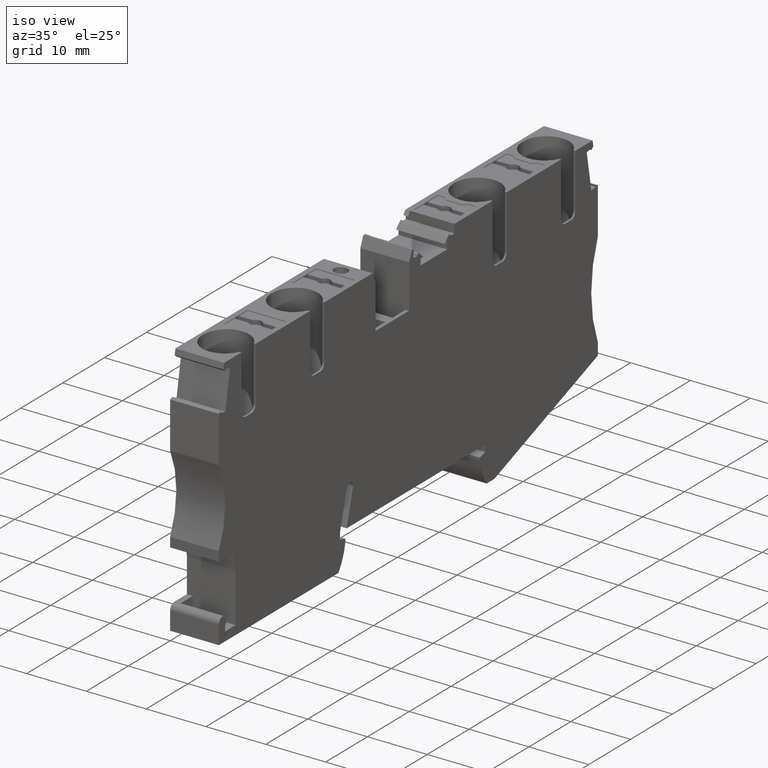
[diagram: clean part render]
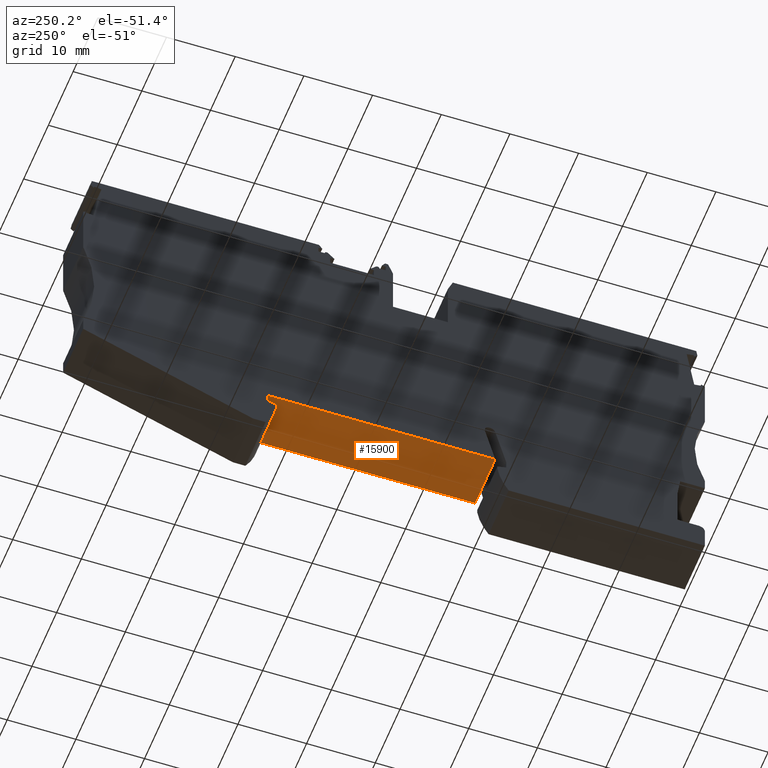
[diagram: tour spotlight — one face highlighted and labeled with its STEP entity id]
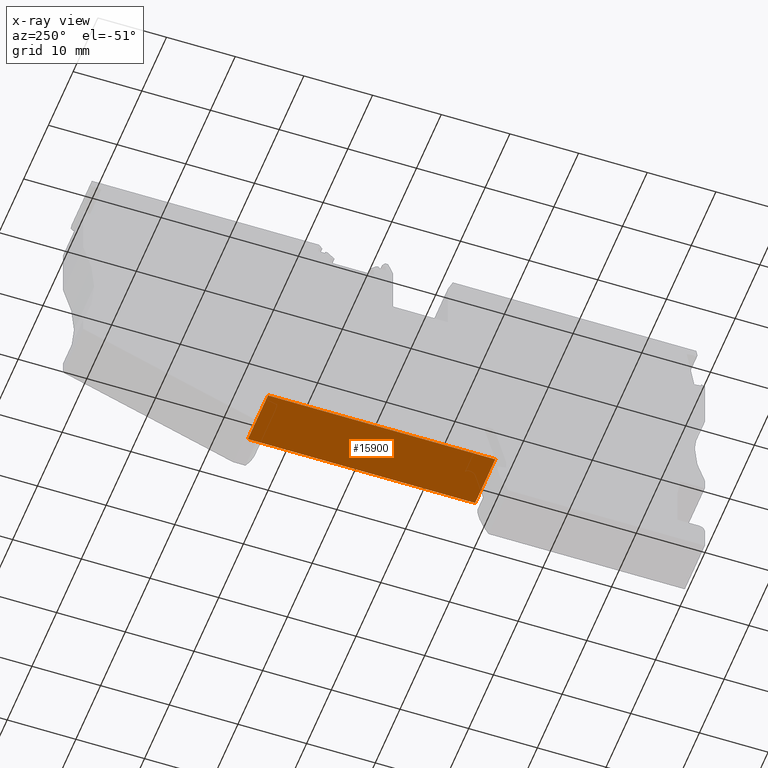
[diagram: x-ray of the same camera — body ghosted, this tour face saturated]
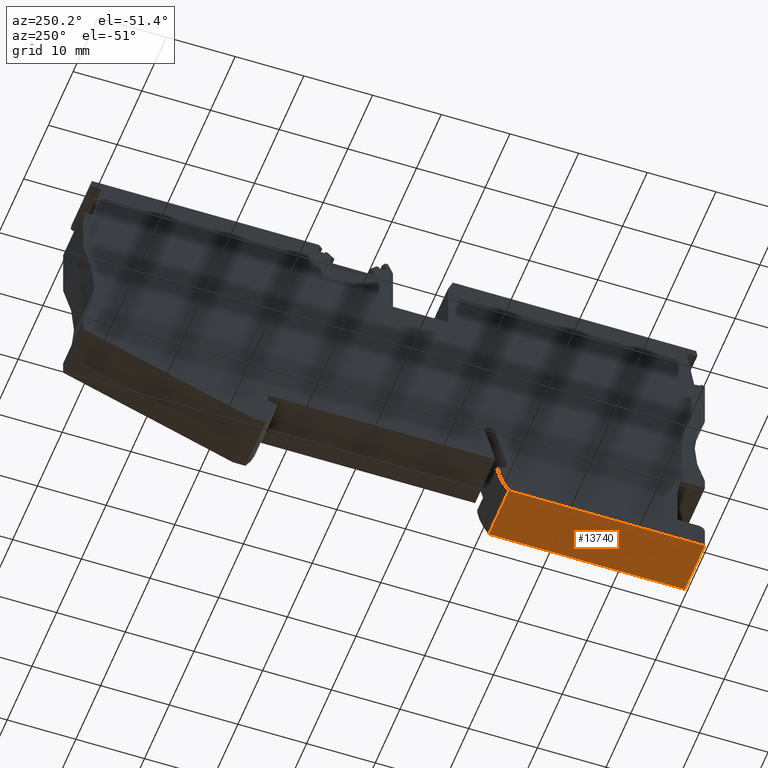
[diagram: tour spotlight — one face highlighted and labeled with its STEP entity id]
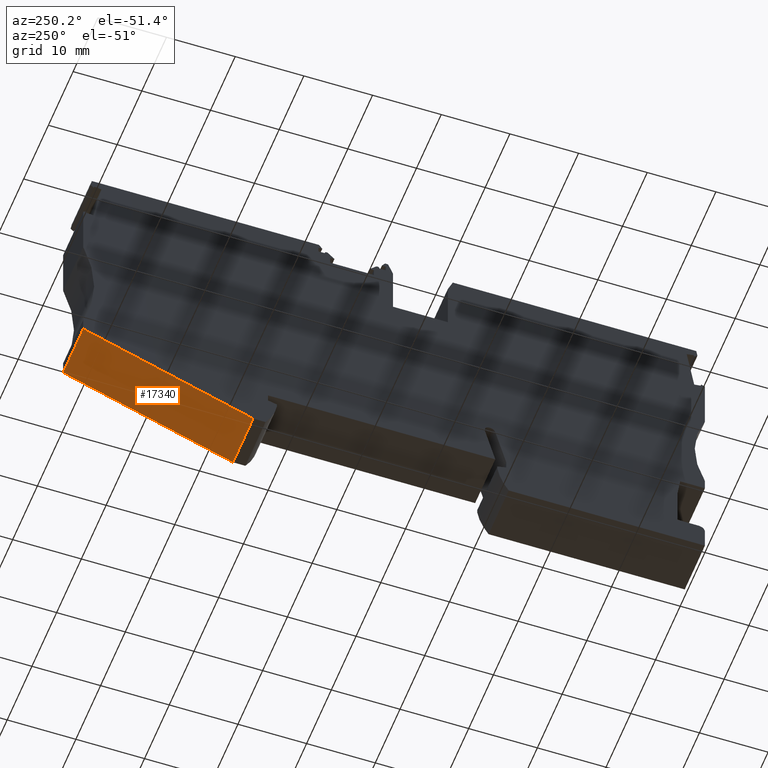
[diagram: tour spotlight — one face highlighted and labeled with its STEP entity id]
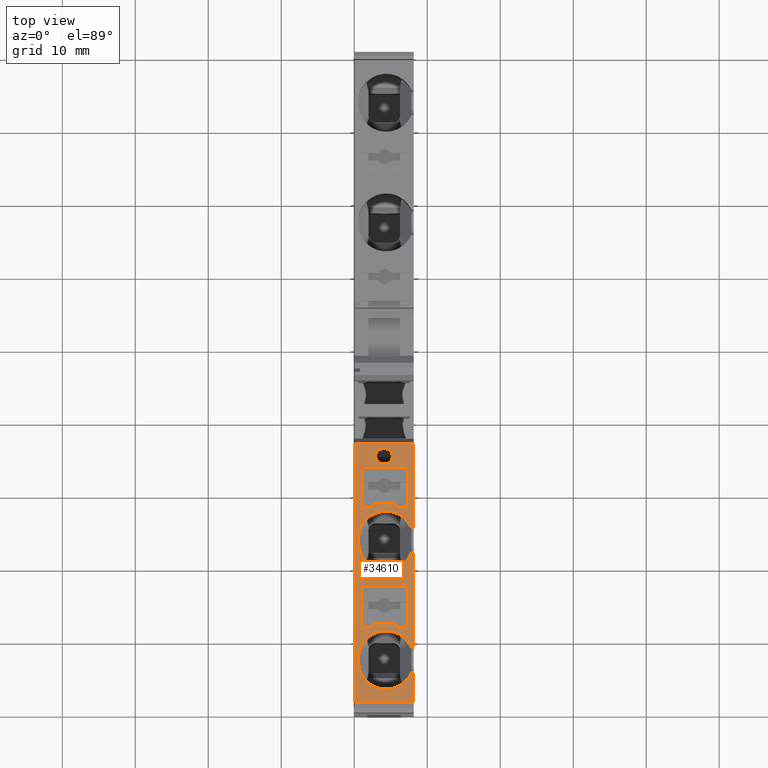
[diagram: tour spotlight — one face highlighted and labeled with its STEP entity id]
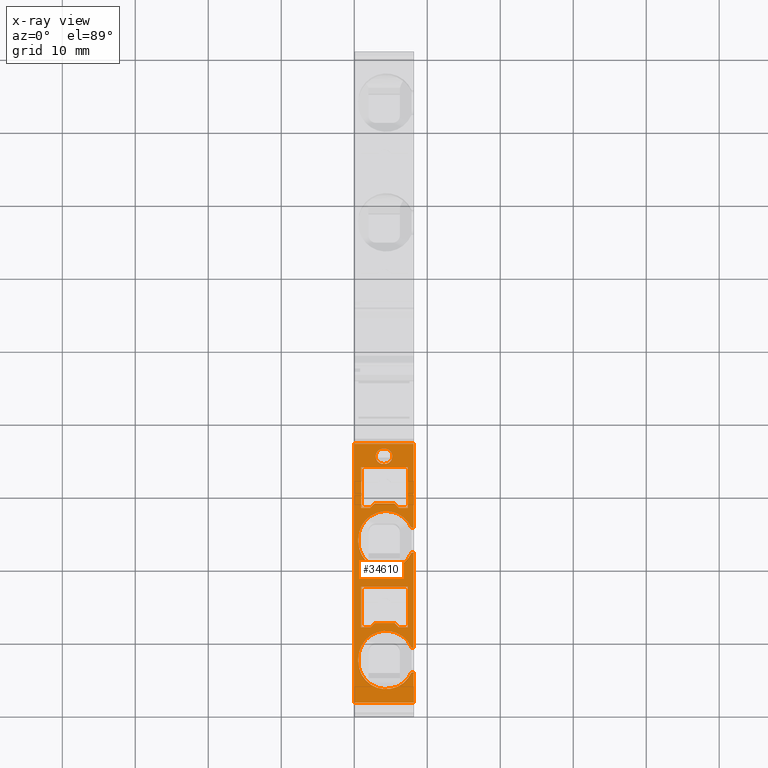
[diagram: x-ray of the same camera — body ghosted, this tour face saturated]
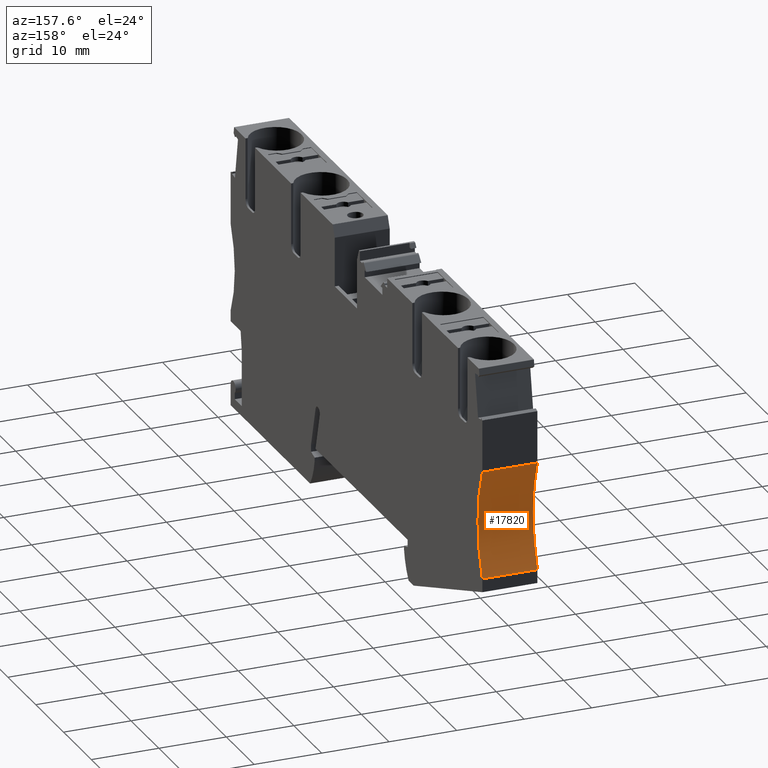
[diagram: tour spotlight — one face highlighted and labeled with its STEP entity id]
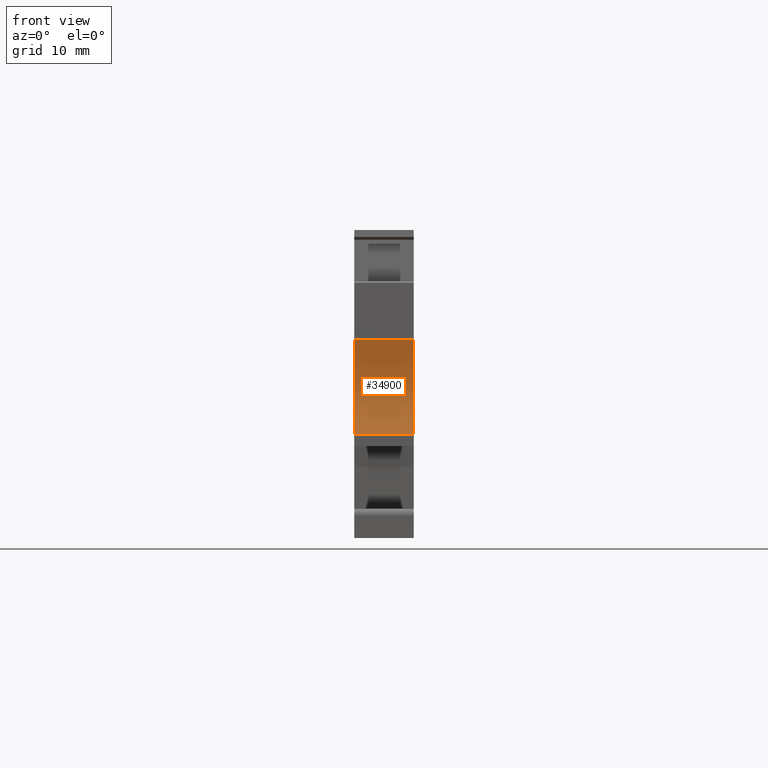
[diagram: tour spotlight — one face highlighted and labeled with its STEP entity id]
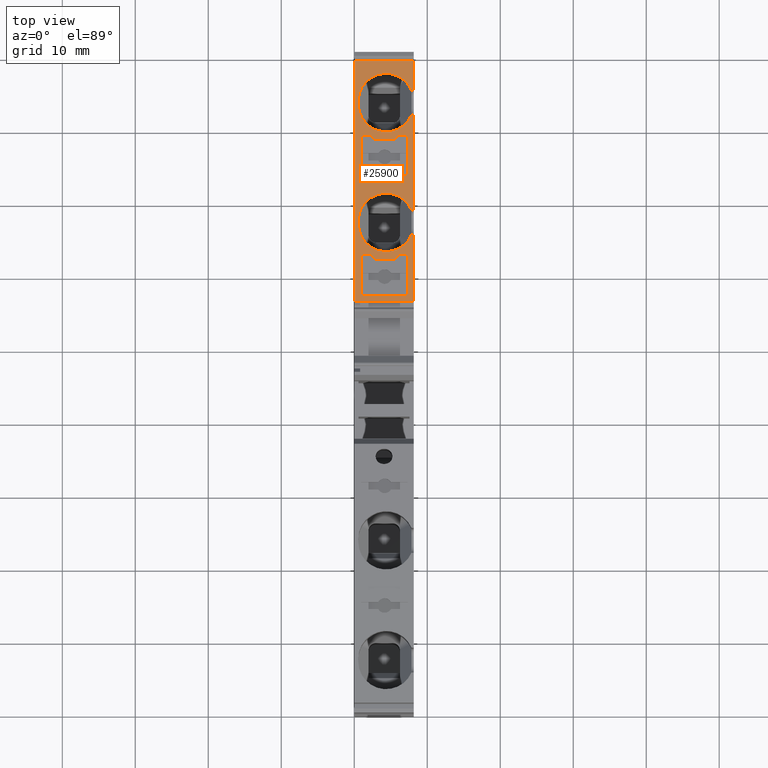
[diagram: tour spotlight — one face highlighted and labeled with its STEP entity id]
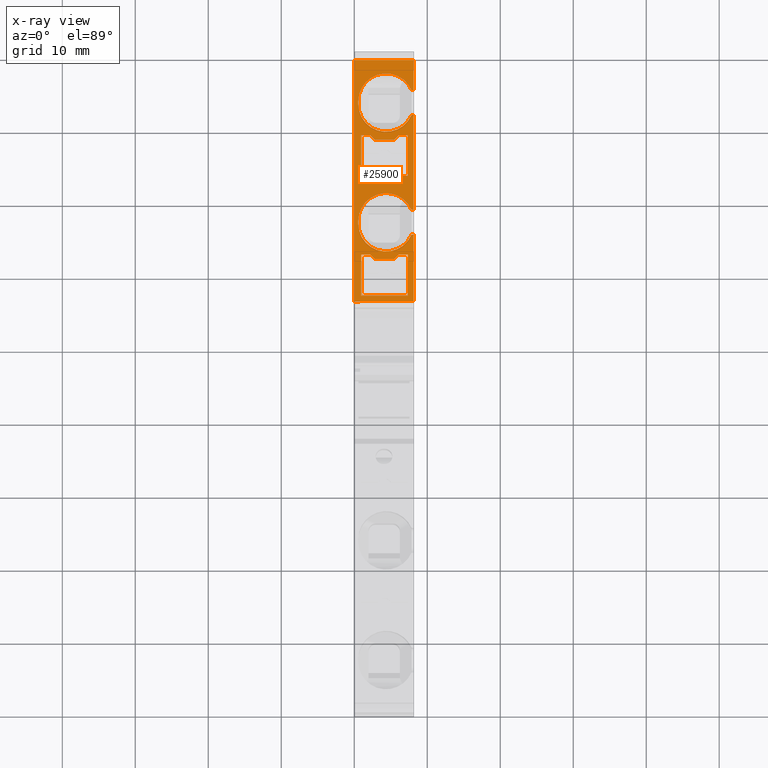
[diagram: x-ray of the same camera — body ghosted, this tour face saturated]
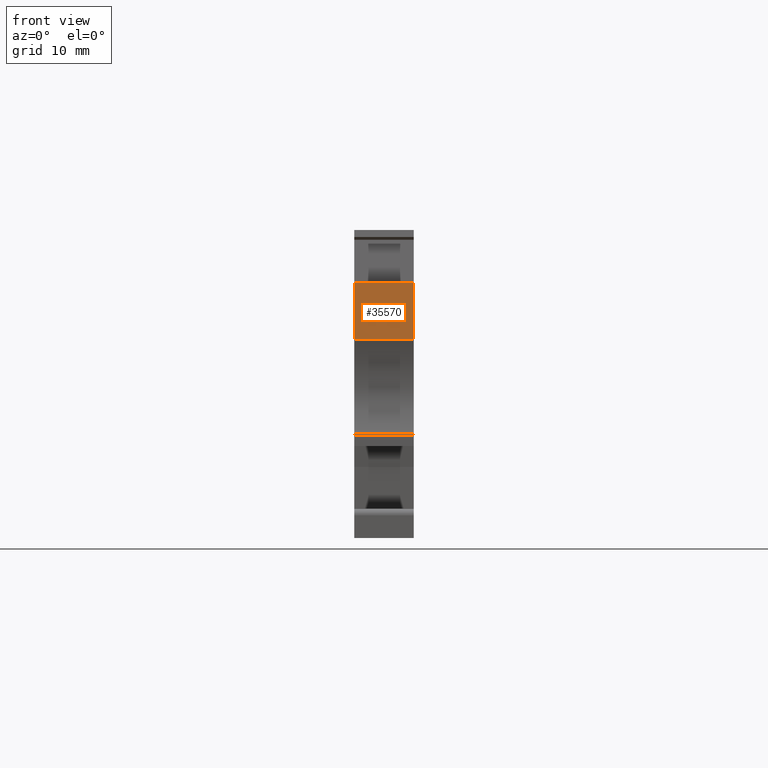
[diagram: tour spotlight — one face highlighted and labeled with its STEP entity id]
A machine part: a face-by-face anatomy tour. The part has 258 B-rep faces; the first image is the clean iso view, then the 8 largest visible faces are spotlighted one at a time (largest first), each with its STEP entity span.

Face 1 — auxiliary view, entity #15900. An x-ray twin of the same camera follows (body ghosted, this face saturated) — the face is partly hidden behind the body. In plain terms, the highlighted planar face has unit normal (-0, 0, 1).
Definition (entity closure, byte-faithful):
#2420=CARTESIAN_POINT('',(19.1321672216941,-38.3999999991542,
53.6699999996562));
#2430=VERTEX_POINT('',#2420);
#2460=CARTESIAN_POINT('',(1.87807013609185E-11,-38.3999999991542,
53.6699999997081));
#2470=DIRECTION('',(-1.,0.,2.71468618527214E-12));
#2480=VECTOR('',#2470,1.);
#2490=LINE('',#2460,#2480);
#2500=CARTESIAN_POINT('',(-13.9678327783064,-38.3999999991542,
53.669999999746));
#2510=VERTEX_POINT('',#2500);
#2520=EDGE_CURVE('',#2430,#2510,#2490,.T.);
#11630=CARTESIAN_POINT('',(-13.9678327783285,-38.3999999991583,
45.5199999998736));
#11640=VERTEX_POINT('',#11630);
#11670=CARTESIAN_POINT('',(5.95238182717381E-15,-38.3999999991583,
45.5199999998397));
#11680=DIRECTION('',(-1.,-1.44620292032358E-25,2.43228784430126E-12));
#11690=VECTOR('',#11680,1.);
#11700=LINE('',#11670,#11690);
#11710=CARTESIAN_POINT('',(19.132167221672,-38.3999999991583,
45.5199999997931));
#11720=VERTEX_POINT('',#11710);
#11730=EDGE_CURVE('',#11720,#11640,#11700,.T.);
#15560=CARTESIAN_POINT('',(-13.9678327784521,-38.3999999991816,
-1.13389967301913E-9));
#15570=DIRECTION('',(-2.71468618527214E-12,-5.12067753800213E-13,-1.));
#15580=VECTOR('',#15570,1.);
#15590=LINE('',#15560,#15580);
#15600=EDGE_CURVE('',#2510,#11640,#15590,.T.);
#15740=CARTESIAN_POINT('',(19.1321672216941,-38.3999999991542,
53.6699999996562));
#15750=DIRECTION('',(-1.39010325716477E-24,1.,-5.12067753800213E-13));
#15760=DIRECTION('',(1.,0.,-2.71468618527214E-12));
#15770=AXIS2_PLACEMENT_3D('',#15740,#15750,#15760);
#15780=PLANE('',#15770);
#15790=ORIENTED_EDGE('',*,*,#2520,.T.);
#15800=CARTESIAN_POINT('',(19.1321672215485,-38.3999999991816,
-1.20936412374023E-9));
#15810=DIRECTION('',(-2.71468618527214E-12,-5.12067753800213E-13,-1.));
#15820=VECTOR('',#15810,1.);
#15830=LINE('',#15800,#15820);
#15840=EDGE_CURVE('',#2430,#11720,#15830,.T.);
#15850=ORIENTED_EDGE('',*,*,#15840,.F.);
#15860=ORIENTED_EDGE('',*,*,#11730,.F.);
#15870=ORIENTED_EDGE('',*,*,#15600,.T.);
#15880=EDGE_LOOP('',(#15870,#15860,#15850,#15790));
#15890=FACE_OUTER_BOUND('',#15880,.T.);
#15900=ADVANCED_FACE('',(#15890),#15780,.F.);

Face 2 — auxiliary view, entity #13740. In plain terms, the highlighted planar face has unit normal (-0, -0, 1).
Definition (entity closure, byte-faithful):
#3170=CARTESIAN_POINT('',(-15.9267764349393,-44.4000000040636,
53.6699999997544));
#3180=VERTEX_POINT('',#3170);
#3210=CARTESIAN_POINT('',(1.88126757840348E-11,-44.400000004063,
53.6699999997112));
#3220=DIRECTION('',(-1.,-3.82333054095721E-14,2.71468618527216E-12));
#3230=VECTOR('',#3220,1.);
#3240=LINE('',#3210,#3230);
#3250=CARTESIAN_POINT('',(-44.4928327779468,-44.4000000040647,
53.669999999832));
#3260=VERTEX_POINT('',#3250);
#3270=EDGE_CURVE('',#3180,#3260,#3240,.T.);
#10880=CARTESIAN_POINT('',(-44.4928327779689,-44.4000000040688,
45.5199999999489));
#10890=VERTEX_POINT('',#10880);
#10920=CARTESIAN_POINT('',(5.95238182948773E-15,-44.4000000040671,
45.5199999998407));
#10930=DIRECTION('',(-1.,-3.82333054097167E-14,2.43228784430126E-12));
#10940=VECTOR('',#10930,1.);
#10950=LINE('',#10920,#10940);
#10960=CARTESIAN_POINT('',(-15.9267764349614,-44.4000000040677,
45.5199999998791));
#10970=VERTEX_POINT('',#10960);
#10980=EDGE_CURVE('',#10970,#10890,#10950,.T.);
#13350=CARTESIAN_POINT('',(-44.4928327780925,-44.4000000040921,
-1.06430594618425E-9));
#13360=DIRECTION('',(-2.71468618527214E-12,-5.12067753800213E-13,-1.));
#13370=VECTOR('',#13360,1.);
#13380=LINE('',#13350,#13370);
#13390=EDGE_CURVE('',#3260,#10890,#13380,.T.);
#13580=CARTESIAN_POINT('',(-15.9267764349393,-44.4000000040636,
53.6699999997544));
#13590=DIRECTION('',(-3.82333054109622E-14,1.,-5.12067753800109E-13));
#13600=DIRECTION('',(1.,3.82333054095721E-14,-2.71468618527216E-12));
#13610=AXIS2_PLACEMENT_3D('',#13580,#13590,#13600);
#13620=PLANE('',#13610);
#13630=ORIENTED_EDGE('',*,*,#3270,.T.);
#13640=CARTESIAN_POINT('',(-15.9267764349393,-44.4000000040636,
53.6699999997544));
#13650=DIRECTION('',(-2.71468618527214E-12,-5.12067753800213E-13,-1.));
#13660=VECTOR('',#13650,1.);
#13670=LINE('',#13640,#13660);
#13680=EDGE_CURVE('',#3180,#10970,#13670,.T.);
#13690=ORIENTED_EDGE('',*,*,#13680,.F.);
#13700=ORIENTED_EDGE('',*,*,#10980,.F.);
#13710=ORIENTED_EDGE('',*,*,#13390,.T.);
#13720=EDGE_LOOP('',(#13710,#13700,#13690,#13630));
#13730=FACE_OUTER_BOUND('',#13720,.T.);
#13740=ADVANCED_FACE('',(#13730),#13620,.F.);

Face 3 — auxiliary view, entity #17340. In plain terms, the highlighted planar face has unit normal (-0, -0.3485, 0.9373).
Definition (entity closure, byte-faithful):
#1930=CARTESIAN_POINT('',(46.0321672309341,-35.1999999922851,
53.6699999995815));
#1940=VERTEX_POINT('',#1930);
#1970=CARTESIAN_POINT('',(1.88553083481896E-11,-52.317744261007,
53.6699999997152));
#1980=DIRECTION('',(-0.937291736634536,-0.348545836923376,
2.72293201282128E-12));
#1990=VECTOR('',#1980,1.);
#2000=LINE('',#1970,#1990);
#2010=CARTESIAN_POINT('',(21.2919951507491,-44.3999999989839,
53.6699999996534));
#2020=VERTEX_POINT('',#2010);
#2030=EDGE_CURVE('',#1940,#2020,#2000,.T.);
#12120=CARTESIAN_POINT('',(21.2919951507269,-44.3999999989881,
45.5199999997889));
#12130=VERTEX_POINT('',#12120);
#12160=CARTESIAN_POINT('',(5.95238183252105E-15,-52.3177442610099,
45.519999999842));
#12170=DIRECTION('',(-0.937291736634536,-0.348545836923376,
2.33876320057636E-12));
#12180=VECTOR('',#12170,1.);
#12190=LINE('',#12160,#12180);
#12200=CARTESIAN_POINT('',(46.0321672309119,-35.1999999922893,
45.5199999997272));
#12210=VERTEX_POINT('',#12200);
#12220=EDGE_CURVE('',#12210,#12130,#12190,.T.);
#17000=CARTESIAN_POINT('',(21.2919951506033,-44.3999999990114,
-1.21428829982236E-9));
#17010=DIRECTION('',(-2.71468618527214E-12,-5.12067753800213E-13,-1.));
#17020=VECTOR('',#17010,1.);
#17030=LINE('',#17000,#17020);
#17040=EDGE_CURVE('',#2020,#12130,#17030,.T.);
#17180=CARTESIAN_POINT('',(46.0321672309341,-35.1999999922851,
53.6699999995815));
#17190=DIRECTION('',(-0.348545836923376,0.937291736634536,
4.66235694196059E-13));
#17200=DIRECTION('',(0.937291736634536,0.348545836923376,
-2.72293201282128E-12));
#17210=AXIS2_PLACEMENT_3D('',#17180,#17190,#17200);
#17220=PLANE('',#17210);
#17230=ORIENTED_EDGE('',*,*,#2030,.T.);
#17240=CARTESIAN_POINT('',(46.0321672307884,-35.1999999923126,
-1.27069323930201E-9));
#17250=DIRECTION('',(-2.71468618527214E-12,-5.12067753800213E-13,-1.));
#17260=VECTOR('',#17250,1.);
#17270=LINE('',#17240,#17260);
#17280=EDGE_CURVE('',#1940,#12210,#17270,.T.);
#17290=ORIENTED_EDGE('',*,*,#17280,.F.);
#17300=ORIENTED_EDGE('',*,*,#12220,.F.);
#17310=ORIENTED_EDGE('',*,*,#17040,.T.);
#17320=EDGE_LOOP('',(#17310,#17300,#17290,#17230));
#17330=FACE_OUTER_BOUND('',#17320,.T.);
#17340=ADVANCED_FACE('',(#17330),#17220,.F.);

Face 4 — top view, entity #34610. An x-ray twin of the same camera follows (body ghosted, this face saturated) — the face is partly hidden behind the body. In plain terms, the highlighted planar face has unit normal (0, -0, -1).
Definition (entity closure, byte-faithful):
#4710=CARTESIAN_POINT('',(-43.2362293342125,-2.19999999291326,
53.6699999998069));
#4720=VERTEX_POINT('',#4710);
#4750=CARTESIAN_POINT('',(1.85870784653816E-11,-2.19999999018175,
53.6699999996896));
#4760=DIRECTION('',(1.,-3.31124017634315E-14,-2.71468618527213E-12));
#4770=VECTOR('',#4760,1.);
#4780=LINE('',#4750,#4770);
#4790=CARTESIAN_POINT('',(-39.1178329684816,-2.19999999018045,
53.6699999997958));
#4800=VERTEX_POINT('',#4790);
#4810=EDGE_CURVE('',#4720,#4800,#4780,.T.);
#5210=CARTESIAN_POINT('',(-35.7178329684816,-2.19999999018057,
53.6699999997865));
#5220=VERTEX_POINT('',#5210);
#5250=CARTESIAN_POINT('',(1.85870784653816E-11,-2.19999999018172,
53.6699999996896));
#5260=DIRECTION('',(1.,-3.26960681289431E-14,-2.71468618527213E-12));
#5270=VECTOR('',#5260,1.);
#5280=LINE('',#5250,#5270);
#5290=CARTESIAN_POINT('',(-22.7178329684778,-2.19999999018098,
53.6699999997512));
#5300=VERTEX_POINT('',#5290);
#5310=EDGE_CURVE('',#5220,#5300,#5280,.T.);
#5710=CARTESIAN_POINT('',(-19.3178329684778,-2.19999999018109,
53.669999999742));
#5720=VERTEX_POINT('',#5710);
#5750=CARTESIAN_POINT('',(1.85870784653817E-11,-2.19999999291469,
53.6699999996896));
#5760=DIRECTION('',(1.,-3.29181126804604E-14,-2.71468618527213E-12));
#5770=VECTOR('',#5760,1.);
#5780=LINE('',#5750,#5770);
#5790=CARTESIAN_POINT('',(-7.78633249990522,-2.19999999291443,
53.6699999997107));
#5800=VERTEX_POINT('',#5790);
#5810=EDGE_CURVE('',#5720,#5800,#5780,.T.);
#9420=CARTESIAN_POINT('',(-7.78633250026155,-2.1999999929186,
45.5199999998525));
#9430=VERTEX_POINT('',#9420);
#9460=CARTESIAN_POINT('',(5.95238181319787E-15,-2.19999999291886,
45.5199999998335));
#9470=DIRECTION('',(1.,-3.29181126803158E-14,-2.43228784430125E-12));
#9480=VECTOR('',#9470,1.);
#9490=LINE('',#9460,#9480);
#9500=CARTESIAN_POINT('',(-43.2362293342346,-2.19999999291744,
45.5199999999387));
#9510=VERTEX_POINT('',#9500);
#9520=EDGE_CURVE('',#9510,#9430,#9490,.T.);
#23280=CARTESIAN_POINT('',(-43.2362293343582,-2.19999999000144,
-1.06717086729168E-9));
#23290=DIRECTION('',(-2.71468618527214E-12,-5.12067753800213E-13,-1.));
#23300=VECTOR('',#23290,1.);
#23310=LINE('',#23280,#23300);
#23320=EDGE_CURVE('',#4720,#9510,#23310,.T.);
#31820=CARTESIAN_POINT('',(-7.78633250038513,-2.19999999294191,
-1.14799283081722E-9));
#31830=DIRECTION('',(-2.71468618527214E-12,-5.12067753800213E-13,-1.));
#31840=VECTOR('',#31830,1.);
#31850=LINE('',#31820,#31840);
#31860=EDGE_CURVE('',#5800,#9430,#31850,.T.);
#32000=CARTESIAN_POINT('',(-19.3178329684894,-2.19999999291405,
53.669999999742));
#32010=DIRECTION('',(-3.29181126790703E-14,-1.,5.12067753800302E-13));
#32020=DIRECTION('',(-1.,3.29181126804604E-14,2.71468618527213E-12));
#32030=AXIS2_PLACEMENT_3D('',#32000,#32010,#32020);
#32040=PLANE('',#32030);
#32050=ORIENTED_EDGE('',*,*,#31860,.T.);
#32060=ORIENTED_EDGE('',*,*,#5810,.T.);
#32070=CARTESIAN_POINT('',(-19.3178329689535,-2.19999999294153,
-1.1217022462598E-9));
#32080=DIRECTION('',(-8.86335069063965E-12,-5.12067753800011E-13,-1.));
#32090=VECTOR('',#32080,1.);
#32100=LINE('',#32070,#32090);
#32110=CARTESIAN_POINT('',(-19.3178329684805,-2.19999999291421,
53.3614180490743));
#32120=VERTEX_POINT('',#32110);
#32130=EDGE_CURVE('',#5720,#32120,#32100,.T.);
#32140=ORIENTED_EDGE('',*,*,#32130,.F.);
#32150=CARTESIAN_POINT('',(-20.8178329685115,-2.19999999291595,
49.8699999990684));
#32160=DIRECTION('',(-1.20206344877901E-10,-1.,3.06483167043375E-11));
#32170=DIRECTION('',(1.,-1.20206344878173E-10,-8.86335069057809E-12));
#32180=AXIS2_PLACEMENT_3D('',#32150,#32160,#32170);
#32190=CIRCLE('',#32180,3.8);
#32200=CARTESIAN_POINT('',(-20.8178329685451,-2.19999999291789,
46.0699999990684));
#32210=VERTEX_POINT('',#32200);
#32220=EDGE_CURVE('',#32210,#32120,#32190,.T.);
#32230=ORIENTED_EDGE('',*,*,#32220,.T.);
#32240=CARTESIAN_POINT('',(1.25989340371474E-12,-2.19999999291858,
46.0699999988839));
#32250=DIRECTION('',(-1.,3.29181126836086E-14,8.86335069426121E-12));
#32260=VECTOR('',#32250,1.);
#32270=LINE('',#32240,#32260);
#32280=CARTESIAN_POINT('',(-21.2178329685451,-2.19999999291788,
46.0699999990719));
#32290=VERTEX_POINT('',#32280);
#32300=EDGE_CURVE('',#32210,#32290,#32270,.T.);
#32310=ORIENTED_EDGE('',*,*,#32300,.F.);
#32320=CARTESIAN_POINT('',(-21.2178329685115,-2.19999999291593,
49.8699999990719));
#32330=DIRECTION('',(-1.20206344877901E-10,-1.,3.06483167043375E-11));
#32340=DIRECTION('',(1.,-1.20206344878173E-10,-8.86335069057809E-12));
#32350=AXIS2_PLACEMENT_3D('',#32320,#32330,#32340);
#32360=CIRCLE('',#32350,3.8);
#32370=CARTESIAN_POINT('',(-22.7178329684805,-2.19999999262862,
53.3614180491045));
#32380=VERTEX_POINT('',#32370);
#32390=EDGE_CURVE('',#32380,#32290,#32360,.T.);
#32400=ORIENTED_EDGE('',*,*,#32390,.T.);
#32410=CARTESIAN_POINT('',(-22.7178329689535,-2.19999999294142,
-1.1139506108383E-9));
#32420=DIRECTION('',(8.86335069063965E-12,5.12067753800011E-13,1.));
#32430=VECTOR('',#32420,1.);
#32440=LINE('',#32410,#32430);
#32450=EDGE_CURVE('',#32380,#5300,#32440,.T.);
#32460=ORIENTED_EDGE('',*,*,#32450,.F.);
#32470=ORIENTED_EDGE('',*,*,#5310,.T.);
#32480=CARTESIAN_POINT('',(-35.7178329689306,-2.19999999294099,
-1.08431200481496E-9));
#32490=DIRECTION('',(-8.36747164505479E-12,-5.12067753800026E-13,-1.));
#32500=VECTOR('',#32490,1.);
#32510=LINE('',#32480,#32500);
#32520=CARTESIAN_POINT('',(-35.7178329684841,-2.19999999291367,
53.3614180491103));
#32530=VERTEX_POINT('',#32520);
#32540=EDGE_CURVE('',#5220,#32530,#32510,.T.);
#32550=ORIENTED_EDGE('',*,*,#32540,.F.);
#32560=CARTESIAN_POINT('',(-37.2178329685133,-2.19999999291541,
49.8699999991036));
#32570=DIRECTION('',(-1.2020673345596E-10,-1.,3.06483167042779E-11));
#32580=DIRECTION('',(1.,-1.20206733456216E-10,-8.36747164499323E-12));
#32590=AXIS2_PLACEMENT_3D('',#32560,#32570,#32580);
#32600=CIRCLE('',#32590,3.8);
#32610=CARTESIAN_POINT('',(-37.2178329685451,-2.19999999291735,
46.0699999991036));
#32620=VERTEX_POINT('',#32610);
#32630=EDGE_CURVE('',#32620,#32530,#32600,.T.);
#32640=ORIENTED_EDGE('',*,*,#32630,.T.);
#32650=CARTESIAN_POINT('',(1.25989340350573E-12,-2.19999999291858,
46.0699999987922));
#32660=DIRECTION('',(-1.,3.29181126833549E-14,8.36747164867635E-12));
#32670=VECTOR('',#32660,1.);
#32680=LINE('',#32650,#32670);
#32690=CARTESIAN_POINT('',(-37.6178329685452,-2.19999999291734,
46.069999999107));
#32700=VERTEX_POINT('',#32690);
#32710=EDGE_CURVE('',#32620,#32700,#32680,.T.);
#32720=ORIENTED_EDGE('',*,*,#32710,.F.);
#32730=CARTESIAN_POINT('',(-37.6178329685133,-2.19999999291539,
49.869999999107));
#32740=DIRECTION('',(-1.2020673345596E-10,-1.,3.06483167042779E-11));
#32750=DIRECTION('',(1.,-1.20206733456216E-10,-8.36747164499323E-12));
#32760=AXIS2_PLACEMENT_3D('',#32730,#32740,#32750);
#32770=CIRCLE('',#32760,3.8);
#32780=CARTESIAN_POINT('',(-39.1178329684842,-2.19999999262808,
53.3614180491387));
#32790=VERTEX_POINT('',#32780);
#32800=EDGE_CURVE('',#32790,#32700,#32770,.T.);
#32810=ORIENTED_EDGE('',*,*,#32800,.T.);
#32820=CARTESIAN_POINT('',(-39.1178329689306,-2.19999999294088,
-1.07656036939345E-9));
#32830=DIRECTION('',(8.36747164505479E-12,5.12067753800026E-13,1.));
#32840=VECTOR('',#32830,1.);
#32850=LINE('',#32820,#32840);
#32860=EDGE_CURVE('',#32790,#4800,#32850,.T.);
#32870=ORIENTED_EDGE('',*,*,#32860,.F.);
#32880=ORIENTED_EDGE('',*,*,#4810,.T.);
#32890=ORIENTED_EDGE('',*,*,#23320,.F.);
#32900=ORIENTED_EDGE('',*,*,#9520,.F.);
#32910=EDGE_LOOP('',(#32900,#32890,#32880,#32870,#32810,#32720,#32640,
#32550,#32470,#32460,#32400,#32310,#32230,#32140,#32060,#32050));
#32920=FACE_OUTER_BOUND('',#32910,.T.);
#32930=CARTESIAN_POINT('',(35.0521670336861,-2.19999999294332,
-1.24566001622673E-9));
#32940=DIRECTION('',(-0.70710678118207,3.85413922998685E-13,
0.707106781191025));
#32950=VECTOR('',#32940,1.);
#32960=LINE('',#32930,#32950);
#32970=CARTESIAN_POINT('',(-15.9678329652449,-2.19999999291552,
51.0199999983314));
#32980=VERTEX_POINT('',#32970);
#32990=CARTESIAN_POINT('',(-16.5678329642108,-2.19999999291519,
51.619999997305));
#33000=VERTEX_POINT('',#32990);
#33010=EDGE_CURVE('',#32980,#33000,#32960,.T.);
#33020=ORIENTED_EDGE('',*,*,#33010,.F.);
#33030=CARTESIAN_POINT('',(-16.5678329580384,-2.19999999294163,
-1.12797195140502E-9));
#33040=DIRECTION('',(1.19574299609069E-10,-5.12067753804252E-13,-1.));
#33050=VECTOR('',#33040,1.);
#33060=LINE('',#33030,#33050);
#33070=CARTESIAN_POINT('',(-16.5678329643603,-2.19999999291455,
52.869999998317));
#33080=VERTEX_POINT('',#33070);
#33090=EDGE_CURVE('',#33080,#33000,#33060,.T.);
#33100=ORIENTED_EDGE('',*,*,#33090,.T.);
#33110=CARTESIAN_POINT('',(1.67631642451789E-11,-2.1999999929151,
52.8699999982077));
#33120=DIRECTION('',(-1.,3.2918112682447E-14,6.59501385783483E-12));
#33130=VECTOR('',#33120,1.);
#33140=LINE('',#33110,#33130);
#33150=CARTESIAN_POINT('',(-10.9678329652507,-2.19999999291474,
52.86999999828));
#33160=VERTEX_POINT('',#33150);
#33170=EDGE_CURVE('',#33160,#33080,#33140,.T.);
#33180=ORIENTED_EDGE('',*,*,#33170,.T.);
#33190=CARTESIAN_POINT('',(-10.967832965556,-2.19999999294181,
-1.14073935090565E-9));
#33200=DIRECTION('',(5.77295231962718E-12,5.12067753800112E-13,1.));
#33210=VECTOR('',#33200,1.);
#33220=LINE('',#33190,#33210);
#33230=CARTESIAN_POINT('',(-10.9678329652877,-2.19999999291801,
46.4699999983271));
#33240=VERTEX_POINT('',#33230);
#33250=EDGE_CURVE('',#33240,#33160,#33220,.T.);
#33260=ORIENTED_EDGE('',*,*,#33250,.T.);
#33270=CARTESIAN_POINT('',(2.17185051069263E-12,-2.19999999291837,
46.4699999982548));
#33280=DIRECTION('',(1.,-3.2918112682447E-14,-6.59501436892222E-12));
#33290=VECTOR('',#33280,1.);
#33300=LINE('',#33270,#33290);
#33310=CARTESIAN_POINT('',(-16.567832963595,-2.19999999291783,
46.4699999983641));
#33320=VERTEX_POINT('',#33310);
#33330=EDGE_CURVE('',#33320,#33240,#33300,.T.);
#33340=ORIENTED_EDGE('',*,*,#33330,.T.);
#33350=CARTESIAN_POINT('',(-16.5678329580384,-2.19999999294163,
-1.12797195140502E-9));
#33360=DIRECTION('',(1.19574299609069E-10,-5.12067753804252E-13,-1.));
#33370=VECTOR('',#33360,1.);
#33380=LINE('',#33350,#33370);
#33390=CARTESIAN_POINT('',(-16.5678329637445,-2.19999999291719,
47.7199999998884));
#33400=VERTEX_POINT('',#33390);
#33410=EDGE_CURVE('',#33400,#33320,#33380,.T.);
#33420=ORIENTED_EDGE('',*,*,#33410,.T.);
#33430=CARTESIAN_POINT('',(4.27945990835019E-11,-2.19999999290925,
64.2878329634658));
#33440=DIRECTION('',(0.707106781191026,3.38756800388813E-13,
0.707106781182069));
#33450=VECTOR('',#33440,1.);
#33460=LINE('',#33430,#33450);
#33470=CARTESIAN_POINT('',(-15.967832965262,-2.1999999929169,
48.3199999983633));
#33480=VERTEX_POINT('',#33470);
#33490=EDGE_CURVE('',#33400,#33480,#33460,.T.);
#33500=ORIENTED_EDGE('',*,*,#33490,.F.);
#33510=CARTESIAN_POINT('',(-15.967832965568,-2.19999999294164,
-1.12933988705047E-9));
#33520=DIRECTION('',(6.33259961907279E-12,5.12067753800094E-13,1.));
#33530=VECTOR('',#33520,1.);
#33540=LINE('',#33510,#33530);
#33550=EDGE_CURVE('',#33480,#32980,#33540,.T.);
#33560=ORIENTED_EDGE('',*,*,#33550,.F.);
#33570=EDGE_LOOP('',(#33560,#33500,#33420,#33340,#33260,#33180,#33100,
#33020));
#33580=FACE_BOUND('',#33570,.T.);
#33590=CARTESIAN_POINT('',(-9.5178327757178,-2.19999999291641,
49.6949999986486));
#33600=DIRECTION('',(2.4356563987915E-10,1.,-5.04477982812982E-13));
#33610=DIRECTION('',(1.,-2.43565639879093E-10,1.12026229502464E-10));
#33620=AXIS2_PLACEMENT_3D('',#33590,#33600,#33610);
#33630=CIRCLE('',#33620,1.05);
#33640=CARTESIAN_POINT('',(-10.5678327757178,-2.19999999291637,
49.694999998531));
#33650=VERTEX_POINT('',#33640);
#33660=CARTESIAN_POINT('',(-8.4678327757178,-2.19999999291644,
49.6949999987663));
#33670=VERTEX_POINT('',#33660);
#33680=EDGE_CURVE('',#33650,#33670,#33630,.T.);
#33690=ORIENTED_EDGE('',*,*,#33680,.F.);
#33700=CARTESIAN_POINT('',(-8.46783277015066,-2.19999999294189,
-1.14643908327873E-9));
#33710=DIRECTION('',(-1.12026229502339E-10,5.12067753803993E-13,1.));
#33720=VECTOR('',#33710,1.);
#33730=LINE('',#33700,#33720);
#33740=CARTESIAN_POINT('',(-8.4678327756954,-2.19999999317226,
49.4949999987663));
#33750=VERTEX_POINT('',#33740);
#33760=EDGE_CURVE('',#33750,#33670,#33730,.T.);
#33770=ORIENTED_EDGE('',*,*,#33760,.T.);
#33780=CARTESIAN_POINT('',(-9.5178327756954,-2.19999999291651,
49.4949999986486));
#33790=DIRECTION('',(2.4356563987915E-10,1.,-5.04477982812982E-13));
#33800=DIRECTION('',(1.,-2.43565639879093E-10,1.12026229502464E-10));
#33810=AXIS2_PLACEMENT_3D('',#33780,#33790,#33800);
#33820=CIRCLE('',#33810,1.05);
#33830=CARTESIAN_POINT('',(-10.5678327756954,-2.19999999266077,
49.494999998531));
#33840=VERTEX_POINT('',#33830);
#33850=EDGE_CURVE('',#33750,#33840,#33820,.T.);
#33860=ORIENTED_EDGE('',*,*,#33850,.F.);
#33870=CARTESIAN_POINT('',(-10.5678327701507,-2.19999999294182,
-1.14165130845956E-9));
#33880=DIRECTION('',(1.12026229502339E-10,-5.12067753803993E-13,-1.));
#33890=VECTOR('',#33880,1.);
#33900=LINE('',#33870,#33890);
#33910=EDGE_CURVE('',#33650,#33840,#33900,.T.);
#33920=ORIENTED_EDGE('',*,*,#33910,.T.);
#33930=EDGE_LOOP('',(#33920,#33860,#33770,#33690));
#33940=FACE_BOUND('',#33930,.T.);
#33950=CARTESIAN_POINT('',(2.17185051056842E-12,-2.19999999291837,
46.4699999982003));
#33960=DIRECTION('',(1.,-3.29181126821933E-14,-6.09913532333736E-12));
#33970=VECTOR('',#33960,1.);
#33980=LINE('',#33950,#33970);
#33990=CARTESIAN_POINT('',(-32.9678329635952,-2.19999999291729,
46.4699999984014));
#34000=VERTEX_POINT('',#33990);
#34010=CARTESIAN_POINT('',(-27.3678329652879,-2.19999999291747,
46.4699999983672));
#34020=VERTEX_POINT('',#34010);
#34030=EDGE_CURVE('',#34000,#34020,#33980,.T.);
#34040=ORIENTED_EDGE('',*,*,#34030,.T.);
#34050=CARTESIAN_POINT('',(-32.9678329580156,-2.19999999294108,
-1.09058170996017E-9));
#34060=DIRECTION('',(1.20070178654654E-10,-5.12067753804252E-13,-1.));
#34070=VECTOR('',#34060,1.);
#34080=LINE('',#34050,#34070);
#34090=CARTESIAN_POINT('',(-32.9678329637453,-2.19999999291665,
47.7199999999257));
#34100=VERTEX_POINT('',#34090);
#34110=EDGE_CURVE('',#34100,#34000,#34080,.T.);
#34120=ORIENTED_EDGE('',*,*,#34110,.T.);
#34130=CARTESIAN_POINT('',(8.01848405281714E-11,-2.19999999290085,
80.6878329633663));
#34140=DIRECTION('',(0.707106781190675,3.38756800388813E-13,
0.70710678118242));
#34150=VECTOR('',#34140,1.);
#34160=LINE('',#34130,#34150);
#34170=CARTESIAN_POINT('',(-32.3678329652631,-2.19999999291636,
48.3199999984009));
#34180=VERTEX_POINT('',#34170);
#34190=EDGE_CURVE('',#34100,#34180,#34160,.T.);
#34200=ORIENTED_EDGE('',*,*,#34190,.F.);
#34210=CARTESIAN_POINT('',(-32.3678329655451,-2.1999999929411,
-1.09194964560563E-9));
#34220=DIRECTION('',(5.83672057348792E-12,5.1206775380011E-13,1.));
#34230=VECTOR('',#34220,1.);
#34240=LINE('',#34210,#34230);
#34250=CARTESIAN_POINT('',(-32.3678329652473,-2.19999999291497,
51.0199999983691));
#34260=VERTEX_POINT('',#34250);
#34270=EDGE_CURVE('',#34180,#34260,#34240,.T.);
#34280=ORIENTED_EDGE('',*,*,#34270,.F.);
#34290=CARTESIAN_POINT('',(18.6521670337345,-2.19999999294278,
-1.20826977478195E-9));
#34300=DIRECTION('',(-0.707106781182421,3.85413922998685E-13,
0.707106781190674));
#34310=VECTOR('',#34300,1.);
#34320=LINE('',#34290,#34310);
#34330=CARTESIAN_POINT('',(-32.9678329642136,-2.19999999291465,
51.6199999973423));
#34340=VERTEX_POINT('',#34330);
#34350=EDGE_CURVE('',#34260,#34340,#34320,.T.);
#34360=ORIENTED_EDGE('',*,*,#34350,.F.);
#34370=CARTESIAN_POINT('',(-32.9678329580156,-2.19999999294108,
-1.09058170996017E-9));
#34380=DIRECTION('',(1.20070178654654E-10,-5.12067753804252E-13,-1.));
#34390=VECTOR('',#34380,1.);
#34400=LINE('',#34370,#34390);
#34410=CARTESIAN_POINT('',(-32.9678329643637,-2.19999999291401,
52.8699999983543));
#34420=VERTEX_POINT('',#34410);
#34430=EDGE_CURVE('',#34420,#34340,#34400,.T.);
#34440=ORIENTED_EDGE('',*,*,#34430,.T.);
#34450=CARTESIAN_POINT('',(1.67631642450547E-11,-2.1999999929151,
52.8699999981532));
#34460=DIRECTION('',(-1.,3.29181126821933E-14,6.09913481224997E-12));
#34470=VECTOR('',#34460,1.);
#34480=LINE('',#34450,#34470);
#34490=CARTESIAN_POINT('',(-27.3678329652541,-2.1999999929142,
52.8699999983201));
#34500=VERTEX_POINT('',#34490);
#34510=EDGE_CURVE('',#34500,#34420,#34480,.T.);
#34520=ORIENTED_EDGE('',*,*,#34510,.T.);
#34530=CARTESIAN_POINT('',(-27.3678329655331,-2.19999999294127,
-1.1033491094608E-9));
#34540=DIRECTION('',(5.27707327404231E-12,5.12067753800128E-13,1.));
#34550=VECTOR('',#34540,1.);
#34560=LINE('',#34530,#34550);
#34570=EDGE_CURVE('',#34020,#34500,#34560,.T.);
#34580=ORIENTED_EDGE('',*,*,#34570,.T.);
#34590=EDGE_LOOP('',(#34580,#34520,#34440,#34360,#34280,#34200,#34120,
#34040));
#34600=FACE_BOUND('',#34590,.T.);
#34610=ADVANCED_FACE('',(#32920,#33580,#33940,#34600),#32040,.F.);

Face 5 — auxiliary view, entity #17820. In plain terms, the highlighted cylindrical surface (partial cylindrical patch) has radius 21 mm, axis along (1, 0, 0).
Definition (entity closure, byte-faithful):
#1760=CARTESIAN_POINT('',(46.0321672306617,-17.1999999987298,
53.6699999995723));
#1770=VERTEX_POINT('',#1760);
#1800=CARTESIAN_POINT('',(65.4486550695463,-25.1999999988827,
53.6699999995237));
#1810=DIRECTION('',(2.71468618527214E-12,5.12067753800213E-13,1.));
#1820=DIRECTION('',(-5.5372373364854E-15,1.,-5.12067753800198E-13));
#1830=AXIS2_PLACEMENT_3D('',#1800,#1810,#1820);
#1840=CIRCLE('',#1830,21.);
#1850=CARTESIAN_POINT('',(46.0321672309034,-33.1999999996222,
53.6699999995805));
#1860=VERTEX_POINT('',#1850);
#1870=EDGE_CURVE('',#1770,#1860,#1840,.T.);
#12280=CARTESIAN_POINT('',(46.0321672308813,-33.1999999996263,
45.519999999735));
#12290=VERTEX_POINT('',#12280);
#12320=CARTESIAN_POINT('',(65.4486550695242,-25.1999999988869,
45.5199999996782));
#12330=DIRECTION('',(2.71468618527214E-12,5.12067753800213E-13,1.));
#12340=DIRECTION('',(-5.5372373364854E-15,1.,-5.12067753800198E-13));
#12350=AXIS2_PLACEMENT_3D('',#12320,#12330,#12340);
#12360=CIRCLE('',#12350,21.);
#12370=CARTESIAN_POINT('',(46.0321672306396,-17.199999998734,
45.5199999997268));
#12380=VERTEX_POINT('',#12370);
#12390=EDGE_CURVE('',#12380,#12290,#12360,.T.);
#17480=CARTESIAN_POINT('',(46.0321672309034,-33.1999999996221,
53.6699999995805));
#17490=DIRECTION('',(-2.71468618527214E-12,-5.12067753800213E-13,-1.));
#17500=VECTOR('',#17490,1.);
#17510=LINE('',#17480,#17500);
#17520=EDGE_CURVE('',#1860,#12290,#17510,.T.);
#17660=CARTESIAN_POINT('',(65.4486550695463,-25.1999999988827,
53.6699999995237));
#17670=DIRECTION('',(2.71468618527214E-12,5.12067753800213E-13,1.));
#17680=DIRECTION('',(-5.5372373364854E-15,1.,-5.12067753800198E-13));
#17690=AXIS2_PLACEMENT_3D('',#17660,#17670,#17680);
#17700=CYLINDRICAL_SURFACE('',#17690,21.);
#17710=ORIENTED_EDGE('',*,*,#1870,.T.);
#17720=CARTESIAN_POINT('',(46.0321672306617,-17.1999999987299,
53.6699999995723));
#17730=DIRECTION('',(-2.71468618527214E-12,-5.12067753800213E-13,-1.));
#17740=VECTOR('',#17730,1.);
#17750=LINE('',#17720,#17740);
#17760=EDGE_CURVE('',#1770,#12380,#17750,.T.);
#17770=ORIENTED_EDGE('',*,*,#17760,.F.);
#17780=ORIENTED_EDGE('',*,*,#12390,.F.);
#17790=ORIENTED_EDGE('',*,*,#17520,.T.);
#17800=EDGE_LOOP('',(#17790,#17780,#17770,#17710));
#17810=FACE_OUTER_BOUND('',#17800,.T.);
#17820=ADVANCED_FACE('',(#17810),#17700,.F.);

Face 6 — front view, entity #34900. In plain terms, the highlighted cylindrical surface (partial cylindrical patch) has radius 15 mm, axis along (1, 0, 0).
Definition (entity closure, byte-faithful):
#3900=CARTESIAN_POINT('',(-44.4928327782965,-30.1999995973658,
53.6699999998247));
#3910=VERTEX_POINT('',#3900);
#3940=CARTESIAN_POINT('',(-58.0113388059585,-23.6999999988992,
53.6699999998581));
#3950=DIRECTION('',(2.71468618527214E-12,5.12067753800213E-13,1.));
#3960=DIRECTION('',(1.,8.02136135278716E-14,-2.71468618527219E-12));
#3970=AXIS2_PLACEMENT_3D('',#3940,#3950,#3960);
#3980=CIRCLE('',#3970,15.);
#3990=CARTESIAN_POINT('',(-44.4928329707687,-17.2000000001346,
53.669999999818));
#4000=VERTEX_POINT('',#3990);
#4010=EDGE_CURVE('',#3910,#4000,#3980,.T.);
#10220=CARTESIAN_POINT('',(-44.4928329707298,-17.2000000002658,
45.5199999999382));
#10230=VERTEX_POINT('',#10220);
#10260=CARTESIAN_POINT('',(-58.0113388059806,-23.6999999989033,
45.5199999999783));
#10270=DIRECTION('',(2.71468618527214E-12,5.12067753800213E-13,1.));
#10280=DIRECTION('',(1.,8.02136135278716E-14,-2.71468618527219E-12));
#10290=AXIS2_PLACEMENT_3D('',#10260,#10270,#10280);
#10300=CIRCLE('',#10290,15.);
#10310=CARTESIAN_POINT('',(-44.4928327783117,-30.1999995973555,
45.5199999999449));
#10320=VERTEX_POINT('',#10310);
#10330=EDGE_CURVE('',#10320,#10230,#10300,.T.);
#34690=CARTESIAN_POINT('',(-58.0113388059585,-23.6999999988992,
53.6699999998581));
#34700=DIRECTION('',(2.71468618527214E-12,5.12067753800213E-13,1.));
#34710=DIRECTION('',(1.,8.02136135278716E-14,-2.71468618527219E-12));
#34720=AXIS2_PLACEMENT_3D('',#34690,#34700,#34710);
#34730=CYLINDRICAL_SURFACE('',#34720,15.);
#34740=ORIENTED_EDGE('',*,*,#4010,.T.);
#34750=CARTESIAN_POINT('',(-44.4928327782895,-30.1999995973513,
53.6699999998247));
#34760=DIRECTION('',(-2.71468618527214E-12,-5.12067753800213E-13,-1.));
#34770=VECTOR('',#34760,1.);
#34780=LINE('',#34750,#34770);
#34790=EDGE_CURVE('',#3910,#10320,#34780,.T.);
#34800=ORIENTED_EDGE('',*,*,#34790,.F.);
#34810=ORIENTED_EDGE('',*,*,#10330,.F.);
#34820=CARTESIAN_POINT('',(-44.4928329707076,-17.2000000002616,
53.669999999818));
#34830=DIRECTION('',(-2.71468618527214E-12,-5.12067753800213E-13,-1.));
#34840=VECTOR('',#34830,1.);
#34850=LINE('',#34820,#34840);
#34860=EDGE_CURVE('',#4000,#10230,#34850,.T.);
#34870=ORIENTED_EDGE('',*,*,#34860,.T.);
#34880=EDGE_LOOP('',(#34870,#34810,#34800,#34740));
#34890=FACE_OUTER_BOUND('',#34880,.T.);
#34900=ADVANCED_FACE('',(#34890),#34730,.F.);

Face 7 — top view, entity #25900. An x-ray twin of the same camera follows (body ghosted, this face saturated) — the face is partly hidden behind the body. In plain terms, the highlighted planar face has unit normal (0, 0, -1).
Definition (entity closure, byte-faithful):
#100=CARTESIAN_POINT('',(20.8571672251235,-2.19999999152153,
53.669999999633));
#110=VERTEX_POINT('',#100);
#460=CARTESIAN_POINT('',(24.2571672251236,-2.19999999068339,
53.6699999996237));
#470=VERTEX_POINT('',#460);
#500=CARTESIAN_POINT('',(1.85870784653817E-11,-2.19999999666308,
53.6699999996896));
#510=DIRECTION('',(-1.,-2.4651194974206E-10,2.71468618539839E-12));
#520=VECTOR('',#510,1.);
#530=LINE('',#500,#520);
#540=CARTESIAN_POINT('',(37.2571672283083,-2.19999998747874,
53.6699999995884));
#550=VERTEX_POINT('',#540);
#560=EDGE_CURVE('',#550,#470,#530,.T.);
#960=CARTESIAN_POINT('',(40.6571672283083,-2.1999999866406,
53.6699999995792));
#970=VERTEX_POINT('',#960);
#1000=CARTESIAN_POINT('',(1.85870784653817E-11,-2.19999999666308,
53.6699999996896));
#1010=DIRECTION('',(-1.,-2.4651194974206E-10,2.71468618539839E-12));
#1020=VECTOR('',#1010,1.);
#1030=LINE('',#1000,#1020);
#1040=CARTESIAN_POINT('',(44.7755635933701,-2.19999998562535,
53.669999999568));
#1050=VERTEX_POINT('',#1040);
#1060=EDGE_CURVE('',#1050,#970,#1030,.T.);
#7330=CARTESIAN_POINT('',(11.7821672212847,-2.19999999375862,
53.6699999996576));
#7340=VERTEX_POINT('',#7330);
#7370=CARTESIAN_POINT('',(1.85870784653817E-11,-2.19999999666307,
53.6699999996896));
#7380=DIRECTION('',(-1.,-2.46512088519778E-10,2.71468618539839E-12));
#7390=VECTOR('',#7380,1.);
#7400=LINE('',#7370,#7390);
#7410=EDGE_CURVE('',#110,#7340,#7400,.T.);
#7640=CARTESIAN_POINT('',(11.6807354925659,-2.19999999378753,
45.5199999998051));
#7650=VERTEX_POINT('',#7640);
#13090=CARTESIAN_POINT('',(44.775563593348,-2.19999998562953,
45.5199999997246));
#13100=VERTEX_POINT('',#13090);
#13130=CARTESIAN_POINT('',(5.95238181319652E-15,-2.19999999666725,
45.5199999998335));
#13140=DIRECTION('',(1.,2.46512088519778E-10,-2.43228784434298E-12));
#13150=VECTOR('',#13140,1.);
#13160=LINE('',#13130,#13150);
#13170=EDGE_CURVE('',#7650,#13100,#13160,.T.);
#19880=CARTESIAN_POINT('',(44.7755635932244,-2.19999998565284,
-1.26782831775269E-9));
#19890=DIRECTION('',(-2.71468618527214E-12,-5.12067753800213E-13,-1.));
#19900=VECTOR('',#19890,1.);
#19910=LINE('',#19880,#19900);
#19920=EDGE_CURVE('',#1050,#13100,#19910,.T.);
#23440=CARTESIAN_POINT('',(11.7821672212847,-2.19999999375862,
53.6699999996576));
#23450=DIRECTION('',(2.46512088519779E-10,-1.,5.1206775313101E-13));
#23460=DIRECTION('',(-1.,-2.46512088519778E-10,2.71468618539838E-12));
#23470=AXIS2_PLACEMENT_3D('',#23440,#23450,#23460);
#23480=PLANE('',#23470);
#23490=CARTESIAN_POINT('',(11.782167221139,-2.19999999378611,
-1.19260691187223E-9));
#23500=DIRECTION('',(-2.71468618527214E-12,-5.12067753800213E-13,-1.));
#23510=VECTOR('',#23500,1.);
#23520=LINE('',#23490,#23510);
#23530=CARTESIAN_POINT('',(11.7821672212833,-2.19999999376239,
46.3199999988336));
#23540=VERTEX_POINT('',#23530);
#23550=EDGE_CURVE('',#7340,#23540,#23520,.T.);
#23560=ORIENTED_EDGE('',*,*,#23550,.F.);
#23570=CARTESIAN_POINT('',(1.82809023955982E-12,-2.19999999666684,
46.3199999988518));
#23580=DIRECTION('',(-1.,-2.46512088519779E-10,1.54721043456223E-12));
#23590=VECTOR('',#23580,1.);
#23600=LINE('',#23570,#23590);
#23610=CARTESIAN_POINT('',(11.6807354925671,-2.1999999937874,
46.3199999988338));
#23620=VERTEX_POINT('',#23610);
#23630=EDGE_CURVE('',#23540,#23620,#23600,.T.);
#23640=ORIENTED_EDGE('',*,*,#23630,.F.);
#23650=CARTESIAN_POINT('',(11.6807354924955,-2.19999999379534,
-1.19237565840734E-9));
#23660=DIRECTION('',(-1.54721043451998E-12,-1.71386140295782E-13,-1.));
#23670=VECTOR('',#23660,1.);
#23680=LINE('',#23650,#23670);
#23690=EDGE_CURVE('',#23620,#7650,#23680,.T.);
#23700=ORIENTED_EDGE('',*,*,#23690,.F.);
#23710=ORIENTED_EDGE('',*,*,#13170,.F.);
#23720=ORIENTED_EDGE('',*,*,#19920,.T.);
#23730=ORIENTED_EDGE('',*,*,#1060,.F.);
#23740=CARTESIAN_POINT('',(40.6571672174478,-2.19999998666807,
-1.25843881562732E-9));
#23750=DIRECTION('',(2.02357539699735E-10,5.12067803014596E-13,1.));
#23760=VECTOR('',#23750,1.);
#23770=LINE('',#23740,#23760);
#23780=CARTESIAN_POINT('',(40.6571672282458,-2.19999998635527,
53.3614180503666));
#23790=VERTEX_POINT('',#23780);
#23800=EDGE_CURVE('',#23790,#970,#23770,.T.);
#23810=ORIENTED_EDGE('',*,*,#23800,.T.);
#23820=CARTESIAN_POINT('',(39.1571672275393,-2.1999999870123,
49.870000000651));
#23830=DIRECTION('',(-3.66685598551866E-10,1.,-3.0648316678285E-11));
#23840=DIRECTION('',(-1.,-3.66685598545664E-10,2.02357539699923E-10));
#23850=AXIS2_PLACEMENT_3D('',#23820,#23830,#23840);
#23860=CIRCLE('',#23850,3.8);
#23870=CARTESIAN_POINT('',(39.1571672267704,-2.19999998701425,
46.070000000651));
#23880=VERTEX_POINT('',#23870);
#23890=EDGE_CURVE('',#23790,#23880,#23860,.T.);
#23900=ORIENTED_EDGE('',*,*,#23890,.F.);
#23910=CARTESIAN_POINT('',(1.25989342580883E-12,-2.19999999666696,
46.0700000085747));
#23920=DIRECTION('',(1.,2.46512088519676E-10,-2.0235753969624E-10));
#23930=VECTOR('',#23920,1.);
#23940=LINE('',#23910,#23930);
#23950=CARTESIAN_POINT('',(38.7571672267704,-2.19999998711285,
46.0700000007319));
#23960=VERTEX_POINT('',#23950);
#23970=EDGE_CURVE('',#23960,#23880,#23940,.T.);
#23980=ORIENTED_EDGE('',*,*,#23970,.T.);
#23990=CARTESIAN_POINT('',(38.7571672275393,-2.19999998711091,
49.8700000007319));
#24000=DIRECTION('',(-3.66685598551866E-10,1.,-3.0648316678285E-11));
#24010=DIRECTION('',(-1.,-3.66685598545664E-10,2.02357539699923E-10));
#24020=AXIS2_PLACEMENT_3D('',#23990,#24000,#24010);
#24030=CIRCLE('',#24020,3.8);
#24040=CARTESIAN_POINT('',(37.2571672282458,-2.19999998747889,
53.3614180510547));
#24050=VERTEX_POINT('',#24040);
#24060=EDGE_CURVE('',#23960,#24050,#24030,.T.);
#24070=ORIENTED_EDGE('',*,*,#24060,.F.);
#24080=CARTESIAN_POINT('',(37.2571672174477,-2.19999998750621,
-1.25068718020581E-9));
#24090=DIRECTION('',(-2.02357539699735E-10,-5.12067803014596E-13,-1.));
#24100=VECTOR('',#24090,1.);
#24110=LINE('',#24080,#24100);
#24120=EDGE_CURVE('',#550,#24050,#24110,.T.);
#24130=ORIENTED_EDGE('',*,*,#24120,.T.);
#24140=ORIENTED_EDGE('',*,*,#560,.F.);
#24150=CARTESIAN_POINT('',(24.257167214263,-2.19999999071087,
-1.22104857417516E-9));
#24160=DIRECTION('',(2.02357539699735E-10,5.12067803014596E-13,1.));
#24170=VECTOR('',#24160,1.);
#24180=LINE('',#24150,#24170);
#24190=CARTESIAN_POINT('',(24.2571672250611,-2.19999999039806,
53.3614180493697));
#24200=VERTEX_POINT('',#24190);
#24210=EDGE_CURVE('',#24200,#470,#24180,.T.);
#24220=ORIENTED_EDGE('',*,*,#24210,.T.);
#24230=CARTESIAN_POINT('',(22.7571672243546,-2.1999999910551,
49.869999999654));
#24240=DIRECTION('',(-3.66685598551866E-10,1.,-3.0648316678285E-11));
#24250=DIRECTION('',(-1.,-3.66685598545664E-10,2.02357539699923E-10));
#24260=AXIS2_PLACEMENT_3D('',#24230,#24240,#24250);
#24270=CIRCLE('',#24260,3.8);
#24280=CARTESIAN_POINT('',(22.7571672235856,-2.19999999105704,
46.069999999654));
#24290=VERTEX_POINT('',#24280);
#24300=EDGE_CURVE('',#24200,#24290,#24270,.T.);
#24310=ORIENTED_EDGE('',*,*,#24300,.F.);
#24320=CARTESIAN_POINT('',(1.25989341596975E-12,-2.19999999666696,
46.0700000042591));
#24330=DIRECTION('',(1.,2.46512088519676E-10,-2.0235753969624E-10));
#24340=VECTOR('',#24330,1.);
#24350=LINE('',#24320,#24340);
#24360=CARTESIAN_POINT('',(22.3571672235856,-2.19999999115565,
46.069999999735));
#24370=VERTEX_POINT('',#24360);
#24380=EDGE_CURVE('',#24370,#24290,#24350,.T.);
#24390=ORIENTED_EDGE('',*,*,#24380,.T.);
#24400=CARTESIAN_POINT('',(22.3571672243546,-2.1999999911537,
49.869999999735));
#24410=DIRECTION('',(-3.66685598551866E-10,1.,-3.0648316678285E-11));
#24420=DIRECTION('',(-1.,-3.66685598545664E-10,2.02357539699923E-10));
#24430=AXIS2_PLACEMENT_3D('',#24400,#24410,#24420);
#24440=CIRCLE('',#24430,3.8);
#24450=CARTESIAN_POINT('',(20.8571672250611,-2.19999999152168,
53.3614180500578));
#24460=VERTEX_POINT('',#24450);
#24470=EDGE_CURVE('',#24370,#24460,#24440,.T.);
#24480=ORIENTED_EDGE('',*,*,#24470,.F.);
#24490=CARTESIAN_POINT('',(20.857167214263,-2.19999999154901,
-1.21329693875365E-9));
#24500=DIRECTION('',(-2.02357539699735E-10,-5.12067803014596E-13,-1.));
#24510=VECTOR('',#24500,1.);
#24520=LINE('',#24490,#24510);
#24530=EDGE_CURVE('',#110,#24460,#24520,.T.);
#24540=ORIENTED_EDGE('',*,*,#24530,.T.);
#24550=ORIENTED_EDGE('',*,*,#7410,.F.);
#24560=EDGE_LOOP('',(#24550,#24540,#24480,#24390,#24310,#24220,#24140,
#24130,#24070,#23980,#23900,#23810,#23730,#23720,#23710,#23700,#23640,
#23560));
#24570=FACE_OUTER_BOUND('',#24560,.T.);
#24580=CARTESIAN_POINT('',(18.1071672033479,-2.19999999222692,
-1.20702723360844E-9));
#24590=DIRECTION('',(-3.30795189999444E-10,-5.12067834676007E-13,-1.));
#24600=VECTOR('',#24590,1.);
#24610=LINE('',#24580,#24600);
#24620=CARTESIAN_POINT('',(18.1071672191335,-2.19999999220248,
47.7200000014526));
#24630=VERTEX_POINT('',#24620);
#24640=CARTESIAN_POINT('',(18.10716721872,-2.19999999220312,
46.4699999999283));
#24650=VERTEX_POINT('',#24640);
#24660=EDGE_CURVE('',#24630,#24650,#24610,.T.);
#24670=ORIENTED_EDGE('',*,*,#24660,.F.);
#24680=CARTESIAN_POINT('',(2.17185052295558E-12,-2.19999999666676,
46.4700000036335));
#24690=DIRECTION('',(-1.,-2.46512088519675E-10,2.04625876021579E-10));
#24700=VECTOR('',#24690,1.);
#24710=LINE('',#24680,#24700);
#24720=CARTESIAN_POINT('',(12.5071672204126,-2.19999999358359,
46.4700000010743));
#24730=VERTEX_POINT('',#24720);
#24740=EDGE_CURVE('',#24650,#24730,#24710,.T.);
#24750=ORIENTED_EDGE('',*,*,#24740,.F.);
#24760=CARTESIAN_POINT('',(12.5071672108655,-2.19999999360738,
-1.19425983410781E-9));
#24770=DIRECTION('',(2.05447938070747E-10,5.12067803776417E-13,1.));
#24780=VECTOR('',#24770,1.);
#24790=LINE('',#24760,#24780);
#24800=CARTESIAN_POINT('',(12.5071672217275,-2.19999999358031,
52.8700000010271));
#24810=VERTEX_POINT('',#24800);
#24820=EDGE_CURVE('',#24730,#24810,#24790,.T.);
#24830=ORIENTED_EDGE('',*,*,#24820,.F.);
#24840=CARTESIAN_POINT('',(1.67631642574418E-11,-2.19999999666348,
52.8700000035864));
#24850=DIRECTION('',(1.,2.46512088519675E-10,-2.04625876532666E-10));
#24860=VECTOR('',#24850,1.);
#24870=LINE('',#24840,#24860);
#24880=CARTESIAN_POINT('',(18.1071672208371,-2.19999999219984,
52.8699999998812));
#24890=VERTEX_POINT('',#24880);
#24900=EDGE_CURVE('',#24810,#24890,#24870,.T.);
#24910=ORIENTED_EDGE('',*,*,#24900,.F.);
#24920=CARTESIAN_POINT('',(18.1071672033479,-2.19999999222692,
-1.20702723360844E-9));
#24930=DIRECTION('',(-3.30795189999444E-10,-5.12067834676007E-13,-1.));
#24940=VECTOR('',#24930,1.);
#24950=LINE('',#24920,#24940);
#24960=CARTESIAN_POINT('',(18.1071672204236,-2.19999999220049,
51.6199999988693));
#24970=VERTEX_POINT('',#24960);
#24980=EDGE_CURVE('',#24890,#24970,#24950,.T.);
#24990=ORIENTED_EDGE('',*,*,#24980,.F.);
#25000=CARTESIAN_POINT('',(-2.73691013499262E-11,-2.19999999667339,
33.5128327858382));
#25010=DIRECTION('',(0.707106781331426,1.74672415420574E-10,
0.707106781041669));
#25020=VECTOR('',#25010,1.);
#25030=LINE('',#25000,#25020);
#25040=CARTESIAN_POINT('',(17.5071672213309,-2.1999999923487,
51.0200000000225));
#25050=VERTEX_POINT('',#25040);
#25060=EDGE_CURVE('',#25050,#24970,#25030,.T.);
#25070=ORIENTED_EDGE('',*,*,#25060,.T.);
#25080=CARTESIAN_POINT('',(17.5071672108775,-2.19999999237482,
-1.20565929796298E-9));
#25090=DIRECTION('',(2.04888290771302E-10,5.12067803638459E-13,1.));
#25100=VECTOR('',#25090,1.);
#25110=LINE('',#25080,#25100);
#25120=CARTESIAN_POINT('',(17.5071672207777,-2.19999999235008,
48.3200000000543));
#25130=VERTEX_POINT('',#25120);
#25140=EDGE_CURVE('',#25130,#25050,#25110,.T.);
#25150=ORIENTED_EDGE('',*,*,#25140,.T.);
#25160=CARTESIAN_POINT('',(65.8271672023475,-2.19999998046336,
-1.31582371663972E-9));
#25170=DIRECTION('',(-0.70710678104167,-1.73948244697186E-10,
0.707106781331425));
#25180=VECTOR('',#25170,1.);
#25190=LINE('',#25160,#25180);
#25200=EDGE_CURVE('',#24630,#25130,#25190,.T.);
#25210=ORIENTED_EDGE('',*,*,#25200,.T.);
#25220=EDGE_LOOP('',(#25210,#25150,#25070,#24990,#24910,#24830,#24750,
#24670));
#25230=FACE_BOUND('',#25220,.T.);
#25240=CARTESIAN_POINT('',(1.67631642673657E-11,-2.19999999666348,
52.8700000079392));
#25250=DIRECTION('',(1.,2.46512088519675E-10,-2.04625876532666E-10));
#25260=VECTOR('',#25250,1.);
#25270=LINE('',#25240,#25260);
#25280=CARTESIAN_POINT('',(28.9071672249122,-2.19999998953751,
52.8700000020241));
#25290=VERTEX_POINT('',#25280);
#25300=CARTESIAN_POINT('',(34.5071672240218,-2.19999998815705,
52.8700000008782));
#25310=VERTEX_POINT('',#25300);
#25320=EDGE_CURVE('',#25290,#25310,#25270,.T.);
#25330=ORIENTED_EDGE('',*,*,#25320,.F.);
#25340=CARTESIAN_POINT('',(34.5071672065327,-2.19999998818412,
-1.24441747506059E-9));
#25350=DIRECTION('',(-3.30795189999444E-10,-5.12067834676007E-13,-1.));
#25360=VECTOR('',#25350,1.);
#25370=LINE('',#25340,#25360);
#25380=CARTESIAN_POINT('',(34.5071672236083,-2.19999998815769,
51.6199999998662));
#25390=VERTEX_POINT('',#25380);
#25400=EDGE_CURVE('',#25310,#25390,#25370,.T.);
#25410=ORIENTED_EDGE('',*,*,#25400,.F.);
#25420=CARTESIAN_POINT('',(-6.47593427845741E-11,-2.19999999668179,
17.1128327903334));
#25430=DIRECTION('',(0.707106781331426,1.74672415420574E-10,
0.707106781041669));
#25440=VECTOR('',#25430,1.);
#25450=LINE('',#25420,#25440);
#25460=CARTESIAN_POINT('',(33.9071672245156,-2.1999999883059,
51.0200000010194));
#25470=VERTEX_POINT('',#25460);
#25480=EDGE_CURVE('',#25470,#25390,#25450,.T.);
#25490=ORIENTED_EDGE('',*,*,#25480,.T.);
#25500=CARTESIAN_POINT('',(33.9071672140622,-2.19999998833203,
-1.24304953941514E-9));
#25510=DIRECTION('',(2.04888290771302E-10,5.12067803638459E-13,1.));
#25520=VECTOR('',#25510,1.);
#25530=LINE('',#25500,#25520);
#25540=CARTESIAN_POINT('',(33.9071672239624,-2.19999998830728,
48.3200000010512));
#25550=VERTEX_POINT('',#25540);
#25560=EDGE_CURVE('',#25550,#25470,#25530,.T.);
#25570=ORIENTED_EDGE('',*,*,#25560,.T.);
#25580=CARTESIAN_POINT('',(82.2271672065665,-2.19999997642056,
-1.35321395809424E-9));
#25590=DIRECTION('',(-0.70710678104167,-1.73948244697186E-10,
0.707106781331425));
#25600=VECTOR('',#25590,1.);
#25610=LINE('',#25580,#25600);
#25620=CARTESIAN_POINT('',(34.5071672223182,-2.19999998815968,
47.7200000024496));
#25630=VERTEX_POINT('',#25620);
#25640=EDGE_CURVE('',#25630,#25550,#25610,.T.);
#25650=ORIENTED_EDGE('',*,*,#25640,.T.);
#25660=CARTESIAN_POINT('',(34.5071672065327,-2.19999998818412,
-1.24441747506059E-9));
#25670=DIRECTION('',(-3.30795189999444E-10,-5.12067834676007E-13,-1.));
#25680=VECTOR('',#25670,1.);
#25690=LINE('',#25660,#25680);
#25700=CARTESIAN_POINT('',(34.5071672219047,-2.19999998816032,
46.4700000009253));
#25710=VERTEX_POINT('',#25700);
#25720=EDGE_CURVE('',#25630,#25710,#25690,.T.);
#25730=ORIENTED_EDGE('',*,*,#25720,.F.);
#25740=CARTESIAN_POINT('',(2.17185053287948E-12,-2.19999999666676,
46.4700000079863));
#25750=DIRECTION('',(-1.,-2.46512088519675E-10,2.04625876021579E-10));
#25760=VECTOR('',#25750,1.);
#25770=LINE('',#25740,#25760);
#25780=CARTESIAN_POINT('',(28.9071672235974,-2.19999998954079,
46.4700000020712));
#25790=VERTEX_POINT('',#25780);
#25800=EDGE_CURVE('',#25710,#25790,#25770,.T.);
#25810=ORIENTED_EDGE('',*,*,#25800,.F.);
#25820=CARTESIAN_POINT('',(28.9071672140502,-2.19999998956459,
-1.23165007555996E-9));
#25830=DIRECTION('',(2.05447938070747E-10,5.12067803776417E-13,1.));
#25840=VECTOR('',#25830,1.);
#25850=LINE('',#25820,#25840);
#25860=EDGE_CURVE('',#25790,#25290,#25850,.T.);
#25870=ORIENTED_EDGE('',*,*,#25860,.F.);
#25880=EDGE_LOOP('',(#25870,#25810,#25730,#25650,#25570,#25490,#25410,
#25330));
#25890=FACE_BOUND('',#25880,.T.);
#25900=ADVANCED_FACE('',(#24570,#25230,#25890),#23480,.F.);

Face 8 — front view, entity #35570. In plain terms, the highlighted planar face has unit normal (-0, 1, -0).
Definition (entity closure, byte-faithful):
#3990=CARTESIAN_POINT('',(-44.4928329707687,-17.2000000001346,
53.669999999818));
#4000=VERTEX_POINT('',#3990);
#4030=CARTESIAN_POINT('',(-44.4928329706452,8.47030889872262E-10,
53.6699999998092));
#4040=DIRECTION('',(3.62711006382345E-12,1.,-5.12067753810059E-13));
#4050=VECTOR('',#4040,1.);
#4060=LINE('',#4030,#4050);
#4070=CARTESIAN_POINT('',(-44.4928329706795,-9.4365101151584,
53.6699999998141));
#4080=VERTEX_POINT('',#4070);
#4090=EDGE_CURVE('',#4000,#4080,#4060,.T.);
#10140=CARTESIAN_POINT('',(-44.4928329707016,-9.43651011516254,
45.519999999943));
#10150=VERTEX_POINT('',#10140);
#10180=CARTESIAN_POINT('',(-44.4928329706674,8.47251158120347E-10,
45.5199999999414));
#10190=DIRECTION('',(3.62711006382438E-12,1.,-1.6929547235215E-13));
#10200=VECTOR('',#10190,1.);
#10210=LINE('',#10180,#10200);
#10220=CARTESIAN_POINT('',(-44.4928329707298,-17.2000000002658,
45.5199999999382));
#10230=VERTEX_POINT('',#10220);
#10240=EDGE_CURVE('',#10230,#10150,#10210,.T.);
#34820=CARTESIAN_POINT('',(-44.4928329707076,-17.2000000002616,
53.669999999818));
#34830=DIRECTION('',(-2.71468618527214E-12,-5.12067753800213E-13,-1.));
#34840=VECTOR('',#34830,1.);
#34850=LINE('',#34820,#34840);
#34860=EDGE_CURVE('',#4000,#10230,#34850,.T.);
#35280=CARTESIAN_POINT('',(-44.4928329708252,-9.43651011518585,
-1.06430594574485E-9));
#35290=DIRECTION('',(-2.71468618527214E-12,-5.12067753800212E-13,-1.));
#35300=VECTOR('',#35290,1.);
#35310=LINE('',#35280,#35300);
#35320=EDGE_CURVE('',#4080,#10150,#35310,.T.);
#35460=CARTESIAN_POINT('',(-44.4928329707076,-17.2000000001052,
53.669999999818));
#35470=DIRECTION('',(1.,-3.62711006382484E-12,-2.71468618527029E-12));
#35480=DIRECTION('',(-3.62711006382345E-12,-1.,5.12067753810059E-13));
#35490=AXIS2_PLACEMENT_3D('',#35460,#35470,#35480);
#35500=PLANE('',#35490);
#35510=ORIENTED_EDGE('',*,*,#4090,.T.);
#35520=ORIENTED_EDGE('',*,*,#34860,.F.);
#35530=ORIENTED_EDGE('',*,*,#10240,.F.);
#35540=ORIENTED_EDGE('',*,*,#35320,.T.);
#35550=EDGE_LOOP('',(#35540,#35530,#35520,#35510));
#35560=FACE_OUTER_BOUND('',#35550,.T.);
#35570=ADVANCED_FACE('',(#35560),#35500,.F.);